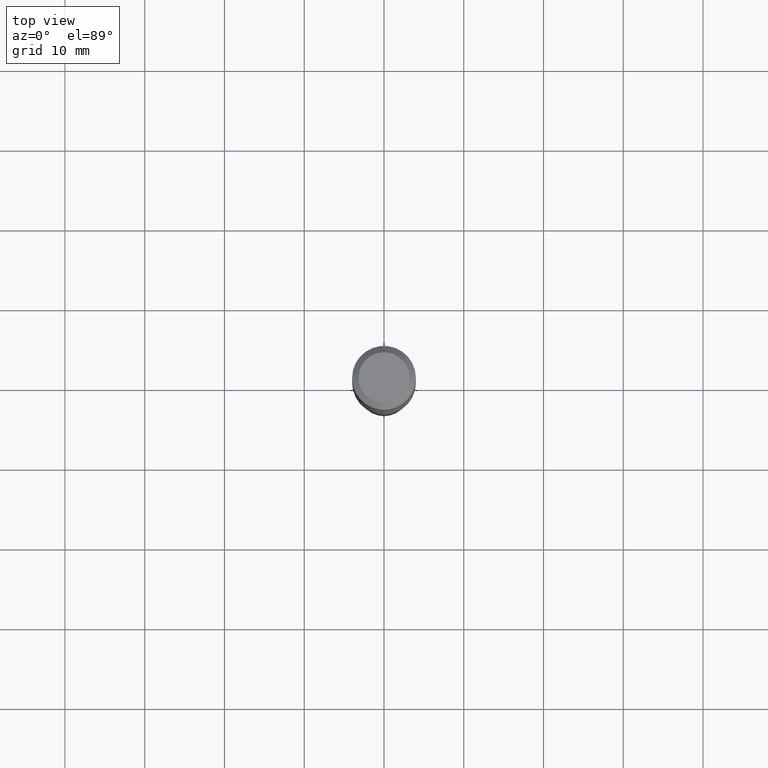
[diagram: clean part render]
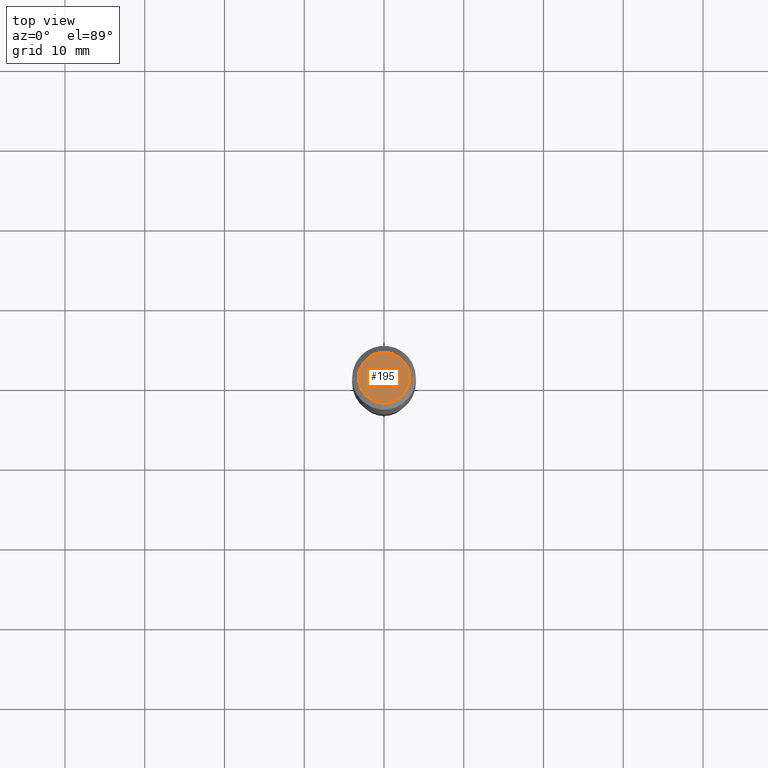
[diagram: same view with one face highlighted and labeled with its STEP entity id]
A machine part, top view. The second image highlights one B-rep face of the part: STEP entity #195.
In plain terms, the highlighted planar face has unit normal (0, -0, -1).
Its self-contained STEP definition (entity closure, byte-faithful):
#26 = DIRECTION ( 'NONE',  ( -2.445468806185136597E-29, 3.491481338843145583E-15, 1.000000000000000000 ) ) ;
#30 = CARTESIAN_POINT ( 'NONE',  ( -9.439721640706201686E-47, 1.347742071746726764E-32, 3.860086710912459732E-18 ) ) ;
#57 = AXIS2_PLACEMENT_3D ( 'NONE', #30, #265, #378 ) ;
#80 = FACE_OUTER_BOUND ( 'NONE', #362, .T. ) ;
#118 = PLANE ( 'NONE',  #129 ) ;
#129 = AXIS2_PLACEMENT_3D ( 'NONE', #191, #196, #266 ) ;
#134 = VERTEX_POINT ( 'NONE', #157 ) ;
#145 = CARTESIAN_POINT ( 'NONE',  ( -9.439721640706201686E-47, 1.347742071746726764E-32, 3.860086710912459732E-18 ) ) ;
#157 = CARTESIAN_POINT ( 'NONE',  ( -0.1260000000000000009, 9.348441284752484904E-16, 3.860086710906114178E-18 ) ) ;
#191 = CARTESIAN_POINT ( 'NONE',  ( -4.719860820353100843E-47, 6.738710358733633822E-33, 1.930043355456229866E-18 ) ) ;
#195 = ADVANCED_FACE ( 'NONE', ( #80 ), #118, .F. ) ;
#196 = DIRECTION ( 'NONE',  ( 2.438088387897960049E-29, -3.491481338843145188E-15, -1.000000000000000000 ) ) ;
#211 = CIRCLE ( 'NONE', #57, 0.1260000000000000009 ) ;
#247 = ORIENTED_EDGE ( 'NONE', *, *, #387, .T. ) ;
#265 = DIRECTION ( 'NONE',  ( -2.445468806185136597E-29, 3.491481338843145583E-15, 1.000000000000000000 ) ) ;
#266 = DIRECTION ( 'NONE',  ( -1.000000000000000000, 6.982962677686265922E-15, -4.876176775795935793E-29 ) ) ;
#269 = VERTEX_POINT ( 'NONE', #388 ) ;
#301 = ORIENTED_EDGE ( 'NONE', *, *, #354, .T. ) ;
#354 = EDGE_CURVE ( 'NONE', #269, #134, #211, .T. ) ;
#362 = EDGE_LOOP ( 'NONE', ( #247, #301 ) ) ;
#378 = DIRECTION ( 'NONE',  ( 1.000000000000000000, -6.982962677686265922E-15, 4.876281427513067258E-29 ) ) ;
#387 = EDGE_CURVE ( 'NONE', #134, #269, #400, .T. ) ;
#388 = CARTESIAN_POINT ( 'NONE',  ( 0.1260000000000000009, -1.027466422270894443E-15, 3.860086710919128072E-18 ) ) ;
#400 = CIRCLE ( 'NONE', #410, 0.1260000000000000009 ) ;
#410 = AXIS2_PLACEMENT_3D ( 'NONE', #145, #26, #479 ) ;
#479 = DIRECTION ( 'NONE',  ( 1.000000000000000000, -6.982962677686265922E-15, 4.876281427513067258E-29 ) ) ;